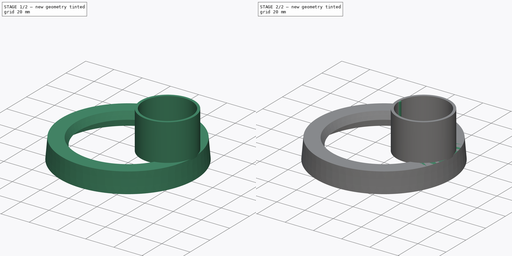
[diagram: build sequence overview — one tinted view per stage of 2, left to right]
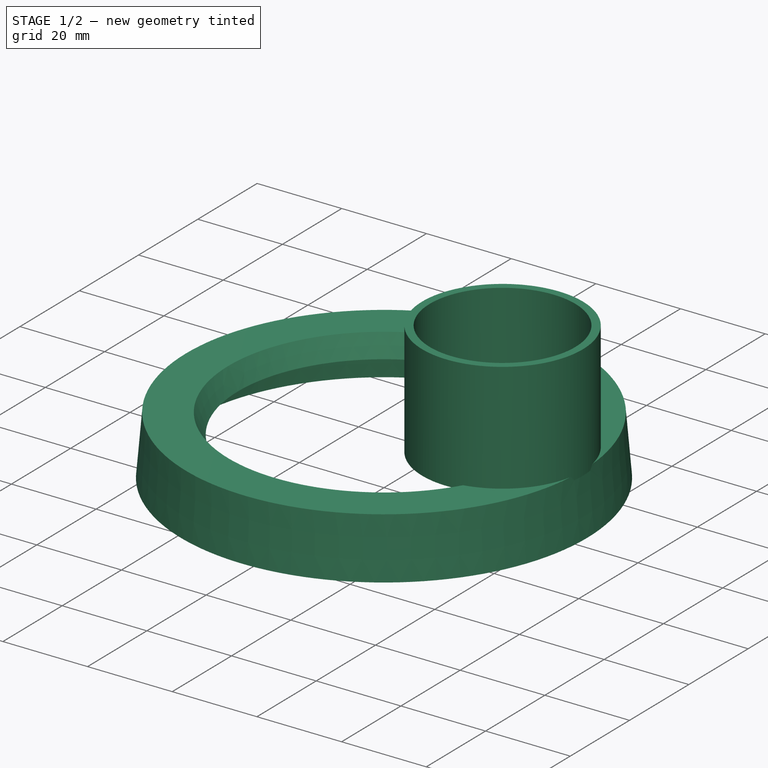
[diagram: stage 1 of 2 — iso view after this stage's code; geometry added in this stage tinted green]
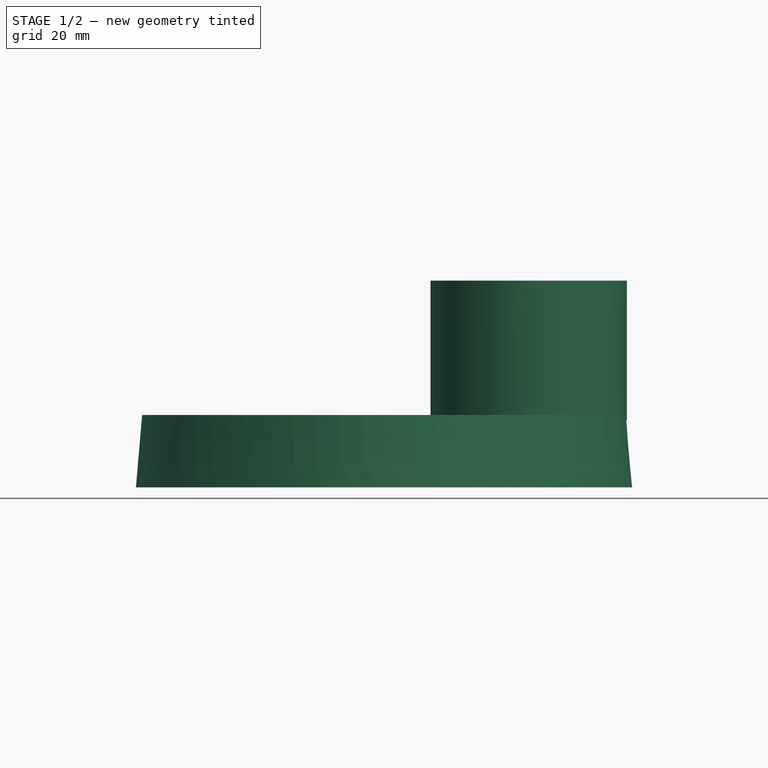
[diagram: stage 1 of 2 — front view after this stage's code; geometry added in this stage tinted green]
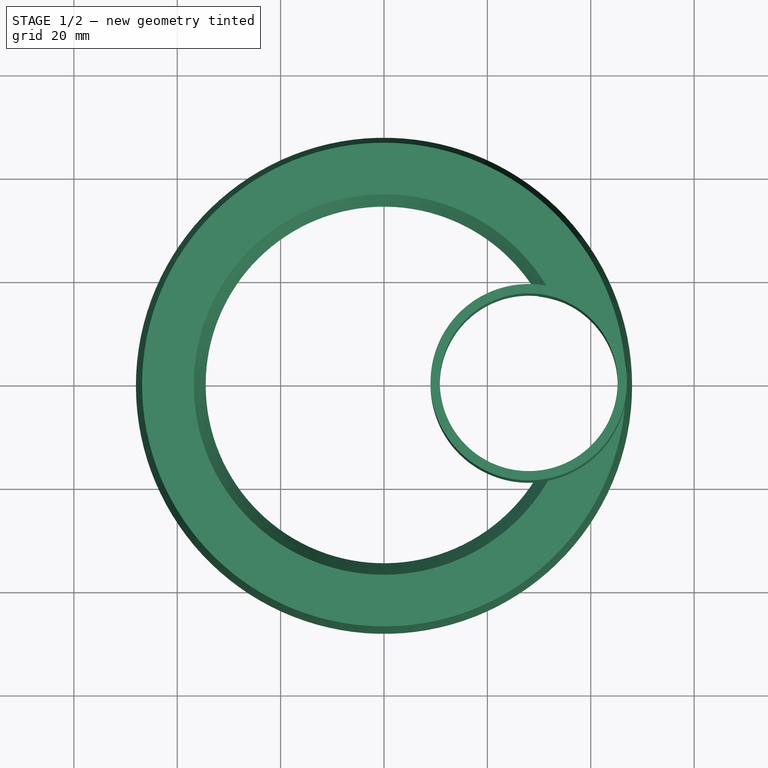
[diagram: stage 1 of 2 — top view after this stage's code; geometry added in this stage tinted green]
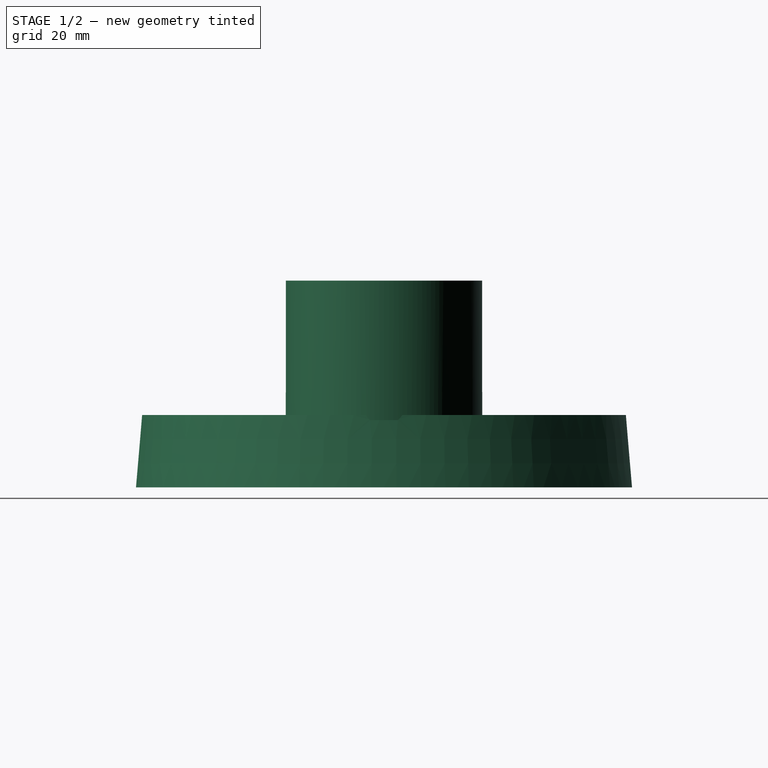
[diagram: stage 1 of 2 — right view after this stage's code; geometry added in this stage tinted green]
FCSTD DOCUMENT  (FreeCAD 1.0R39109 (Git))
Label: KamstrupHalter2
License: All rights reserved
LicenseURL: https://en.wikipedia.org/wiki/All_rights_reserved
objects: Sketcher::SketchObject×4, PartDesign::Pad×2, PartDesign::Revolution×1, Spreadsheet::Sheet×1, PartDesign::Pocket×1, PartDesign::Body×1
note: 21 computed .brp shape members not serialized (recipe doc carries the construction recipe); baked Part::Feature solids carry a one-line shape summary decoded from their .brp

FEATURE [Spreadsheet::Sheet] Spreadsheet
  cells = A1='Aussenradius; B1(Aussenradius)==46 mm; A2='Wand; B2(Wand)==2 mm; A3='Breite1; B3(Breite)==10 mm; A4='HoeheAussen; B4(HoeheAussen)==13 mm; A5='HoeheInnen; B5(HoeheInnen)==3.8 mm; A6='Fenster; B6(Fenster)==36.5 mm; A7='LinkeNeigung; B7(LinkeNeigung)==7 mm; A8='AussenRadiusOben; B8(AussenRadiusOben)==45.3 mm; A9='Neigung; B9(Neigung)==1.2 mm; A10='SensosHalter; B10(SensorHalter)==19 mm; A11='SensorHalterHoehe; B11(SensorHalterHoehe)==27 mm; A12='LEDAbstand; B12(LEDAbstand)==8.5 mm; A13='Spiel; B13(Spiel)==0.2 mm; A14='Fuehrung; B14(Fuehrung)==1.2 mm
FEATURE [Sketcher::SketchObject] Sketch001
  ArcFitTolerance = 1e-06
  AttachmentOffset = pos=(0,0,-1) rot=(0,0,1;0rad)
  AttachmentSupport = -> [Revolution]
  FullyConstrained = true
  MakeInternals = false
  MapMode = 5
  Placement = pos=(0,3.1e-15,13) rot=(0,0,1;3.14159rad)
  expr: .AttachmentOffset.Base.z = -Spreadsheet.Wand / 2
  expr: Constraints[1] = Spreadsheet.SensorHalter
  expr: Constraints[2] = Spreadsheet.Fenster - Spreadsheet.LEDAbstand
  sketch-geometry (1):
    g0: Circle CenterX=-28 CenterY=0 CenterZ=0 NormalX=0 NormalY=0 NormalZ=1 AngleXU=0 Radius=19
  constraints (3):
    c: PointOnObject(g0,g-1)
    c: Radius(g0) = 19
    c: DistanceX(g0,g-1) = 28
FEATURE [PartDesign::Pad] Pad
  Direction = (0,0,1)
  Length = 27
  Length2 = 10
  Placement = pos=(0,0,0) rot=(1,0,0;1.5708rad)
  Profile = -> Sketch001
  ReferenceAxis = -> Sketch001 [N_Axis]
  Refine = true
  Suppressed = false
  Type = 0
  expr: Length = Spreadsheet.SensorHalterHoehe
FEATURE [Sketcher::SketchObject] Sketch002
  ArcFitTolerance = 1e-06
  AttachmentSupport = -> [XY_Plane]
  FullyConstrained = true
  MakeInternals = false
  MapMode = 5
  expr: Constraints[1] = Spreadsheet.SensorHalter - Spreadsheet.Wand + Spreadsheet.Spiel
  expr: Constraints[2] = Spreadsheet.Fenster - Spreadsheet.LEDAbstand
  sketch-geometry (1):
    g0: Circle CenterX=28 CenterY=0 CenterZ=0 NormalX=0 NormalY=0 NormalZ=1 AngleXU=0 Radius=17.2
  constraints (3):
    c: PointOnObject(g0,g-1)
    c: Radius(g0) = 17.2
    c: Distance(g0,g-1) = 28
FEATURE [PartDesign::Pocket] Pocket
  BaseFeature = -> Pad
  Direction = (0,0,-1)
  Length = 5
  Length2 = 5
  Placement = pos=(0,0,0) rot=(1,0,0;1.5708rad)
  Profile = -> Sketch002
  ReferenceAxis = -> Sketch002 [N_Axis]
  Refine = true
  Reversed = true
  Suppressed = false
  Type = 1
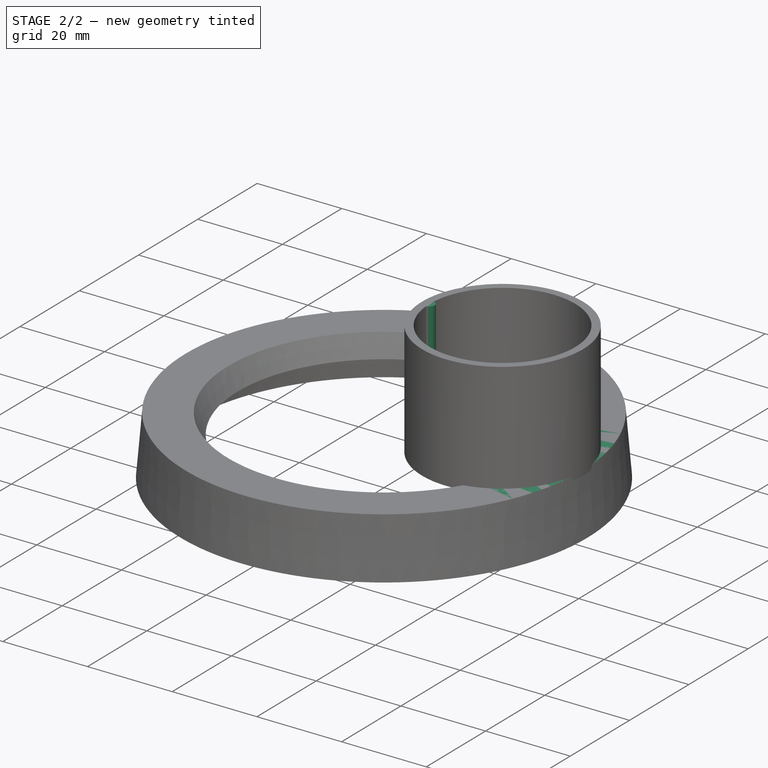
[diagram: stage 2 of 2 — iso view after this stage's code; geometry added in this stage tinted green]
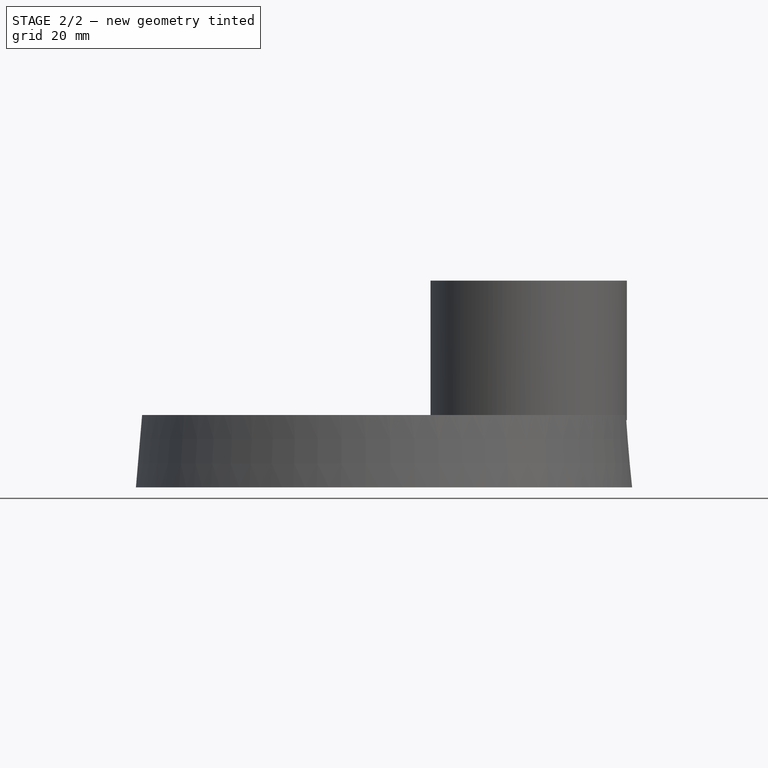
[diagram: stage 2 of 2 — front view after this stage's code; geometry added in this stage tinted green]
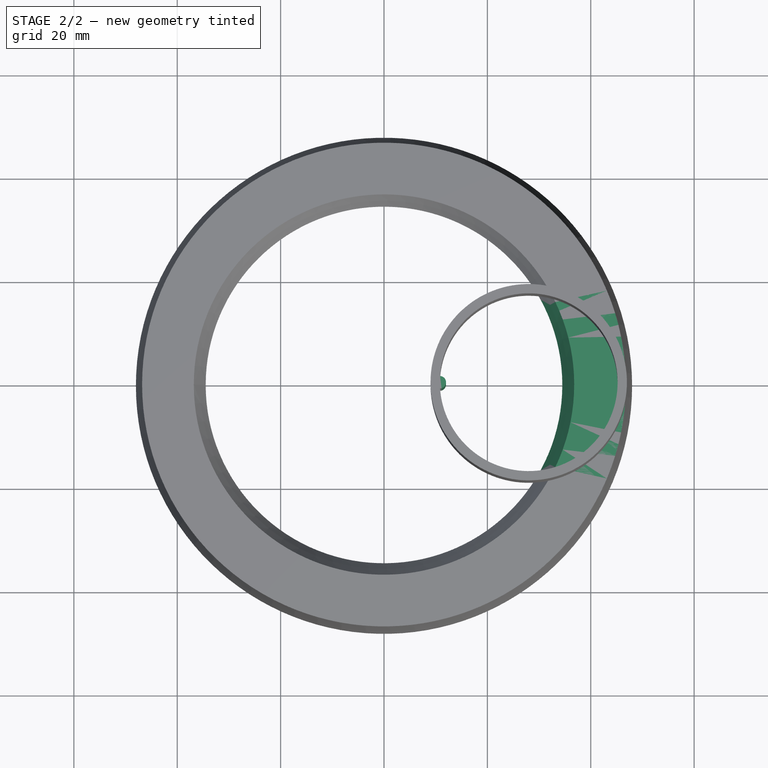
[diagram: stage 2 of 2 — top view after this stage's code; geometry added in this stage tinted green]
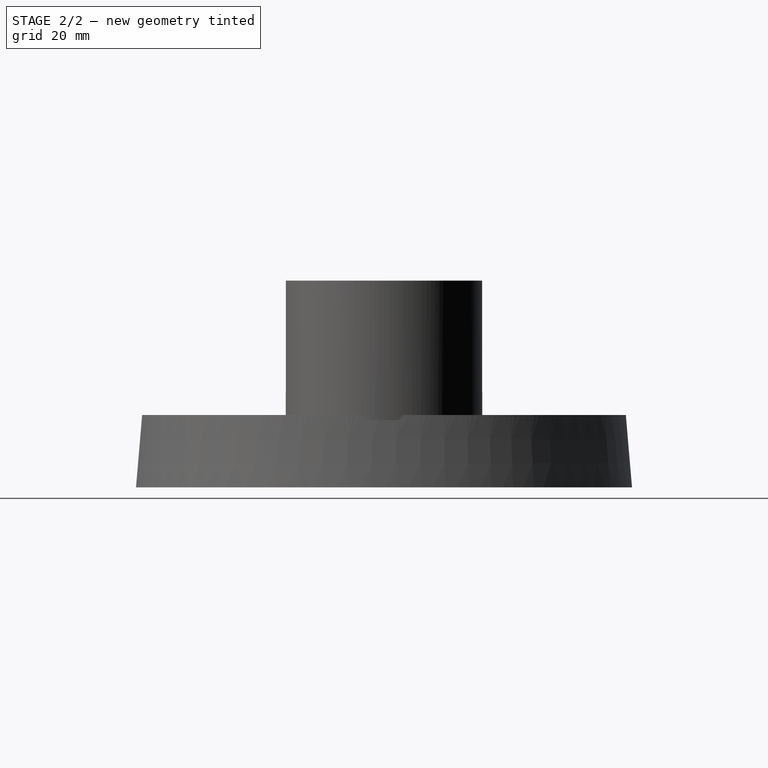
[diagram: stage 2 of 2 — right view after this stage's code; geometry added in this stage tinted green]
FEATURE [Sketcher::SketchObject] Sketch
  ArcFitTolerance = 1e-06
  AttachmentSupport = -> [XZ_Plane]
  FullyConstrained = true
  MakeInternals = false
  MapMode = 5
  Placement = pos=(0,0,0) rot=(1,0,0;1.5708rad)
  expr: Constraints[10] = Spreadsheet.Aussenradius
  expr: Constraints[14] = Spreadsheet.HoeheAussen
  expr: Constraints[15] = Spreadsheet.HoeheInnen
  expr: Constraints[16] = Spreadsheet.Wand / 2
  expr: Constraints[17] = Spreadsheet.LinkeNeigung
  expr: Constraints[19] = Spreadsheet.AussenRadiusOben
  expr: Constraints[20] = Spreadsheet.Fenster
  expr: Constraints[21] = Spreadsheet.Breite
  expr: Constraints[23] = Spreadsheet.Neigung
  expr: Constraints[8] = Spreadsheet.Wand
  expr: Constraints[9] = Spreadsheet.Wand
  sketch-geometry (8):
    g0: LineSegment StartX=-36.5 StartY=9.2 StartZ=0 EndX=-34.5 EndY=9.2 EndZ=0
    g1: LineSegment StartX=-34.5 StartY=9.2 StartZ=0 EndX=-36.8 EndY=14 EndZ=0
    g2: LineSegment StartX=-36.8 StartY=14 StartZ=0 EndX=-46.8 EndY=14 EndZ=0
    g3: LineSegment StartX=-46.8 StartY=14 StartZ=0 EndX=-48 EndY=0 EndZ=0
    g4: LineSegment StartX=-48 StartY=0 StartZ=0 EndX=-46 EndY=0 EndZ=0
    g5: LineSegment StartX=-46 StartY=0 StartZ=0 EndX=-45.3 EndY=9.2 EndZ=0
    g6: LineSegment StartX=-38.3 StartY=13 StartZ=0 EndX=-36.5 EndY=9.2 EndZ=0
    g7: LineSegment StartX=-45.3 StartY=9.2 StartZ=0 EndX=-38.3 EndY=13 EndZ=0
  constraints (24):
    c: Coincident(g0,g1)
    c: Coincident(g1,g2)
    c: Horizontal(g2)
    c: Coincident(g2,g3)
    c: PointOnObject(g3,g-1)
    c: Coincident(g3,g4)
    c: PointOnObject(g4,g-1)
    c: Coincident(g4,g5)
    c: Distance(g3,g4) = 2
    c: Distance(g0,g0) = 2
    c: DistanceX(g4,g-1) = 46
    c: Coincident(g7,g5)
    c: Coincident(g0,g6)
    c: Horizontal(g0)
    c: DistanceY(g4,g7) = 13
    c: DistanceY(g0,g7) = 3.8
    c: DistanceY(g7,g1) = 1
    c: DistanceX(g5,g7) = 7
    c: Coincident(g6,g7)
    c: DistanceX(g5,g-1) = 45.3
    c: Distance(g0,g-2) = 36.5
    c: DistanceX(g2,g1) = 10
    c: Horizontal(g5,g0)
    c: DistanceX(g3,g2) = 1.2
FEATURE [PartDesign::Revolution] Revolution
  Angle = 360
  Angle2 = 60
  Axis = (0,2e-16,1)
  Base = (0,0,0)
  Placement = pos=(0,0,0) rot=(1,0,0;1.5708rad)
  Profile = -> Sketch
  ReferenceAxis = -> Sketch [V_Axis]
  Refine = true
  Suppressed = false
  Type = 0
FEATURE [Sketcher::SketchObject] Sketch003
  ArcFitTolerance = 1e-06
  AttachmentOffset = pos=(0,0,13) rot=(0,0,1;0rad)
  AttachmentSupport = -> [XY_Plane]
  ExternalGeometry = -> [Pocket]
  FullyConstrained = true
  MakeInternals = false
  MapMode = 5
  Placement = pos=(0,0,13) rot=(0,0,1;0rad)
  expr: Constraints[1] = Spreadsheet.SensorHalter - Spreadsheet.Wand + Spreadsheet.Spiel
  expr: Constraints[2] = Spreadsheet.Fuehrung
  sketch-geometry (1):
    g0: Circle CenterX=10.8 CenterY=0 CenterZ=0 NormalX=0 NormalY=0 NormalZ=1 AngleXU=0 Radius=1.2
  constraints (3):
    c: PointOnObject(g0,g-1)
    c: DistanceX(g0,g-3) = 17.2
    c: Radius(g0) = 1.2
FEATURE [PartDesign::Pad] Pad001
  BaseFeature = -> Pocket
  Direction = (0,0,1)
  Length = 27
  Length2 = 10
  Placement = pos=(0,0,0) rot=(1,0,0;1.5708rad)
  Profile = -> Sketch003
  ReferenceAxis = -> Sketch003 [N_Axis]
  Refine = true
  Suppressed = false
  Type = 0
  expr: Length = Spreadsheet.SensorHalterHoehe
FEATURE [PartDesign::Body] Body
  AllowCompound = false
  Group = -> [Sketch,Sketch001,Pad,Sketch002,Pocket,Sketch003,Pad001]
  Origin = -> Origin
  Tip = -> Pad001
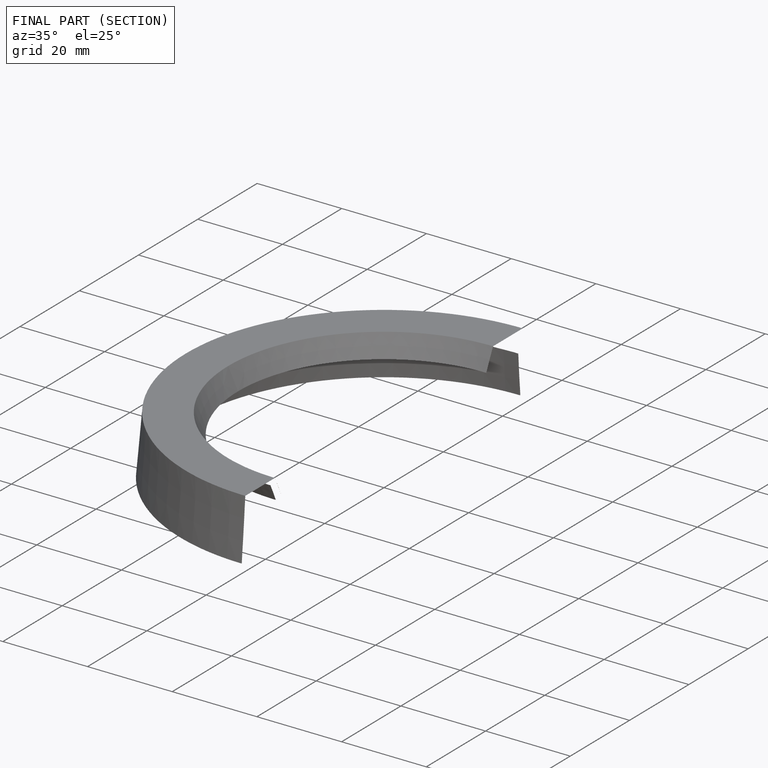
[diagram: finished part — half-section view (interior)]
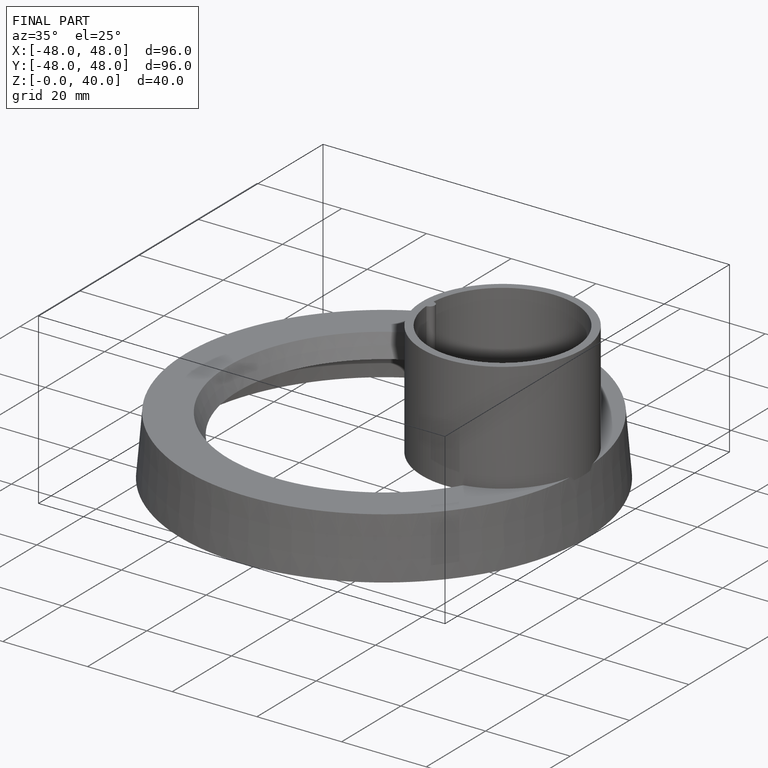
[diagram: finished part — iso view with bounding-box wireframe]
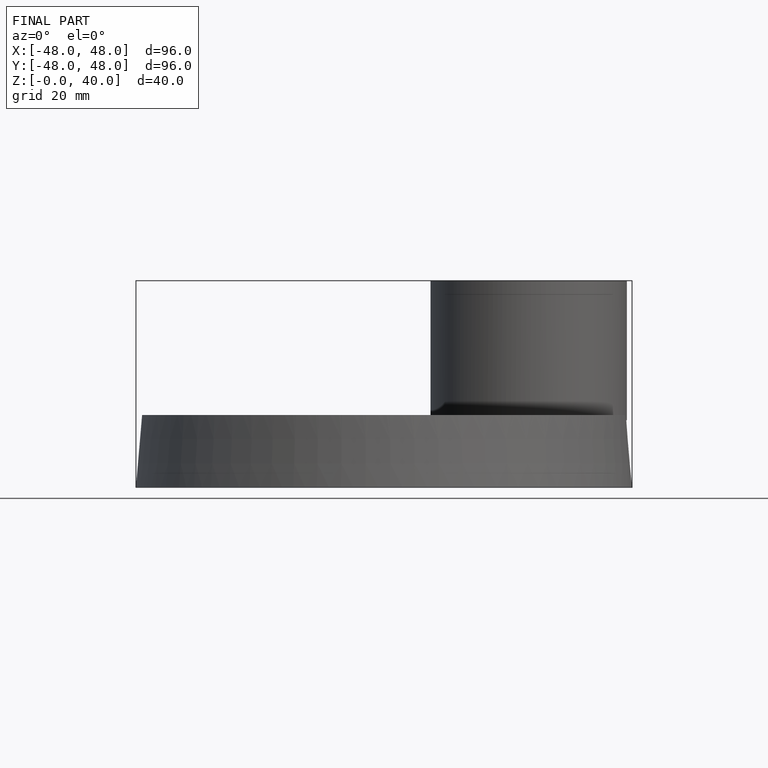
[diagram: finished part — front view with bounding-box wireframe]
